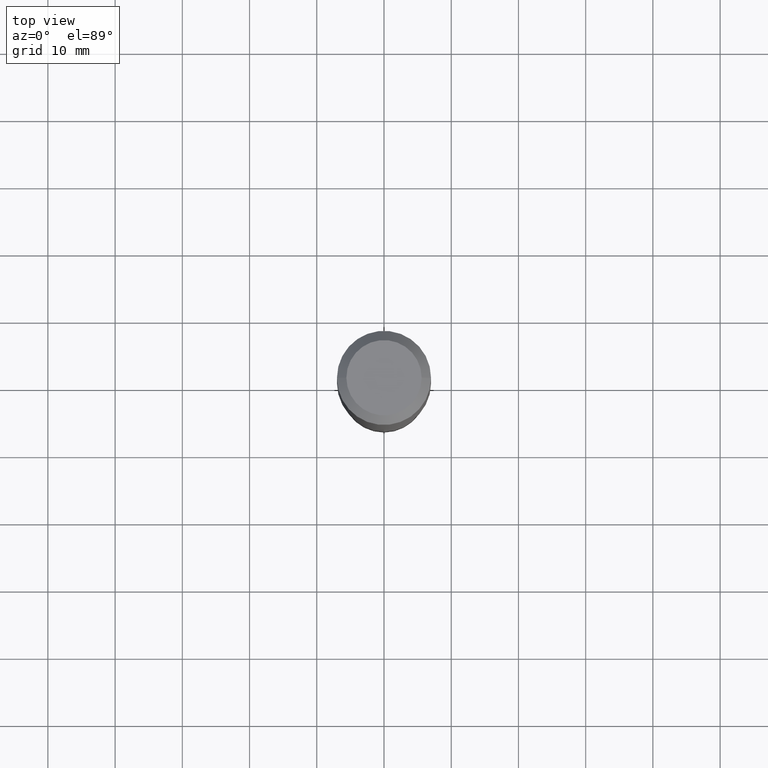
[diagram: clean part render]
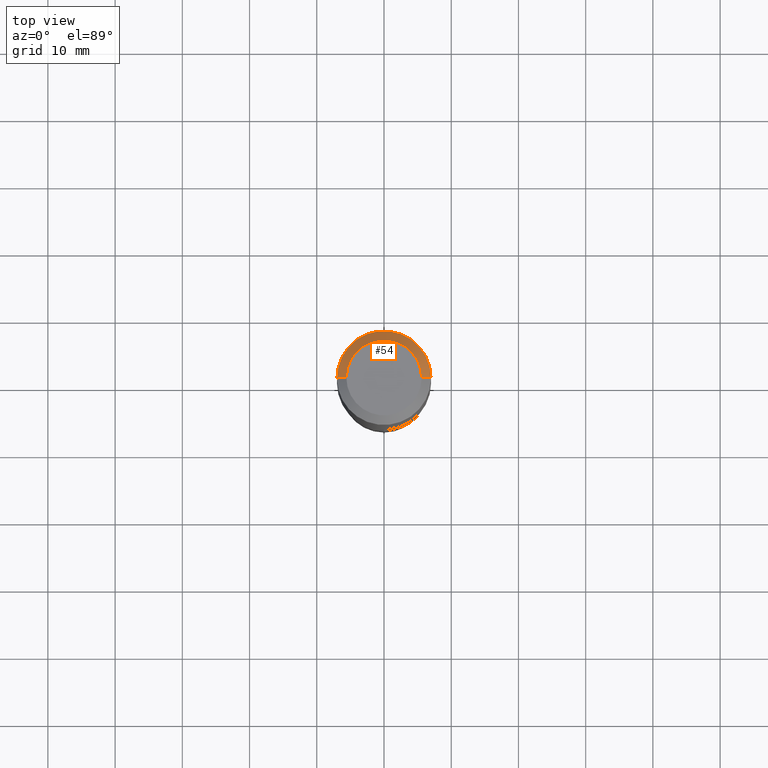
[diagram: same view with one face highlighted and labeled with its STEP entity id]
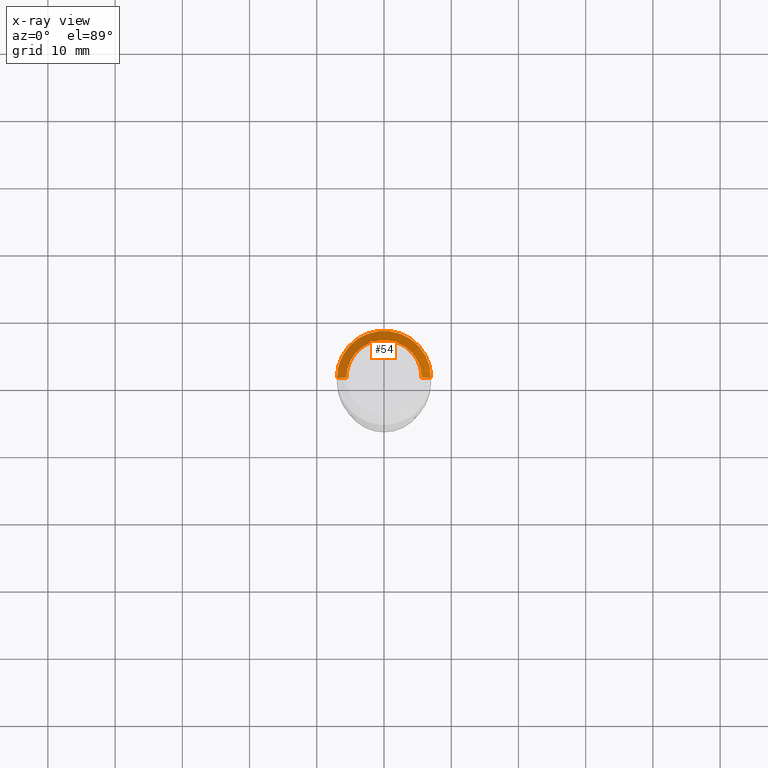
[diagram: x-ray of the same camera — body ghosted, the highlighted face saturated]
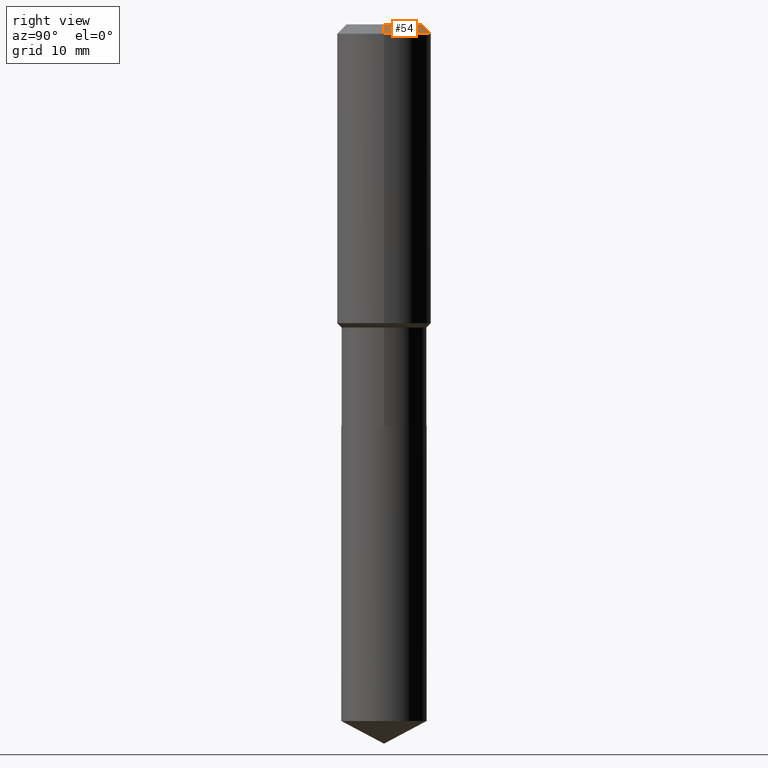
[diagram: same view with one face highlighted and labeled with its STEP entity id]
A machine part, top view. The second image highlights one B-rep face of the part: STEP entity #54.
The next image is the same camera in x-ray: the body ghosted, the highlighted face saturated — about 0% of this face is hidden behind the body in this view.
A second angle (right view) of the same face is appended — the face is thin or edge-on in the first view.
In plain terms, the highlighted conical surface has half-angle 45 deg.
Its self-contained STEP definition (entity closure, byte-faithful):
#12 = EDGE_CURVE ( 'NONE', #400, #174, #275, .T. ) ;
#17 = AXIS2_PLACEMENT_3D ( 'NONE', #364, #19, #256 ) ;
#19 = DIRECTION ( 'NONE',  ( -2.445468806185136597E-29, 3.491481338843145583E-15, 1.000000000000000000 ) ) ;
#54 = ADVANCED_FACE ( 'NONE', ( #110 ), #84, .T. ) ;
#56 = VERTEX_POINT ( 'NONE', #227 ) ;
#69 = VECTOR ( 'NONE', #489, 39.37007874015748143 ) ;
#84 = CONICAL_SURFACE ( 'NONE', #485, 0.2756000000000000116, 0.7853981633974452814 ) ;
#107 = EDGE_CURVE ( 'NONE', #144, #174, #306, .T. ) ;
#110 = FACE_OUTER_BOUND ( 'NONE', #365, .T. ) ;
#129 = LINE ( 'NONE', #423, #431 ) ;
#144 = VERTEX_POINT ( 'NONE', #268 ) ;
#151 = CARTESIAN_POINT ( 'NONE',  ( 1.347942405969256063E-30, -1.924504513970354330E-16, -0.05512000000000035621 ) ) ;
#153 = ORIENTED_EDGE ( 'NONE', *, *, #12, .T. ) ;
#174 = VERTEX_POINT ( 'NONE', #370 ) ;
#192 = DIRECTION ( 'NONE',  ( 2.445468806185136597E-29, -3.491481338843145583E-15, -1.000000000000000000 ) ) ;
#208 = CARTESIAN_POINT ( 'NONE',  ( 0.2756000000000000116, -2.116954965367370658E-15, -0.05512000000000035621 ) ) ;
#227 = CARTESIAN_POINT ( 'NONE',  ( 0.2204800000000000093, -1.797903149065768707E-15, 3.860086710924123164E-18 ) ) ;
#256 = DIRECTION ( 'NONE',  ( 1.000000000000000000, -6.982962677686266711E-15, 4.876132675269083677E-29 ) ) ;
#266 = CIRCLE ( 'NONE', #17, 0.2204800000000000093 ) ;
#268 = CARTESIAN_POINT ( 'NONE',  ( -0.2204800000000000093, 1.635828836874783961E-15, 3.860086710901350968E-18 ) ) ;
#275 = CIRCLE ( 'NONE', #392, 0.2756000000000000116 ) ;
#290 = ORIENTED_EDGE ( 'NONE', *, *, #301, .F. ) ;
#298 = DIRECTION ( 'NONE',  ( -1.000000000000000000, 6.982962677686269077E-15, 0.000000000000000000 ) ) ;
#301 = EDGE_CURVE ( 'NONE', #56, #144, #266, .T. ) ;
#306 = LINE ( 'NONE', #452, #69 ) ;
#335 = DIRECTION ( 'NONE',  ( 1.000000000000000000, -6.982962677686265922E-15, 0.000000000000000000 ) ) ;
#353 = DIRECTION ( 'NONE',  ( 0.7071067811865453523, -7.319954787623248157E-15, -0.7071067811865496822 ) ) ;
#364 = CARTESIAN_POINT ( 'NONE',  ( -9.439721640706190018E-47, 1.347742071746724849E-32, 3.860086710912454339E-18 ) ) ;
#365 = EDGE_LOOP ( 'NONE', ( #290, #372, #153, #376 ) ) ;
#370 = CARTESIAN_POINT ( 'NONE',  ( -0.2756000000000000116, -1.192666469297548903E-15, -0.05512000000000035621 ) ) ;
#371 = EDGE_CURVE ( 'NONE', #56, #400, #129, .T. ) ;
#372 = ORIENTED_EDGE ( 'NONE', *, *, #371, .T. ) ;
#376 = ORIENTED_EDGE ( 'NONE', *, *, #107, .F. ) ;
#381 = CARTESIAN_POINT ( 'NONE',  ( 1.347942405969256063E-30, -1.924504513970354330E-16, -0.05512000000000035621 ) ) ;
#392 = AXIS2_PLACEMENT_3D ( 'NONE', #151, #412, #335 ) ;
#400 = VERTEX_POINT ( 'NONE', #208 ) ;
#412 = DIRECTION ( 'NONE',  ( -2.445468806185136597E-29, 3.491481338843145583E-15, 1.000000000000000000 ) ) ;
#423 = CARTESIAN_POINT ( 'NONE',  ( 0.2756000000000000116, -2.083203699582869812E-15, -0.05512000000000035621 ) ) ;
#431 = VECTOR ( 'NONE', #353, 39.37007874015748143 ) ;
#452 = CARTESIAN_POINT ( 'NONE',  ( -0.2756000000000000116, 1.732054062573300039E-15, -0.05512000000000035621 ) ) ;
#485 = AXIS2_PLACEMENT_3D ( 'NONE', #381, #192, #298 ) ;
#489 = DIRECTION ( 'NONE',  ( -0.7071067811865453523, 2.468850131082234184E-15, -0.7071067811865496822 ) ) ;